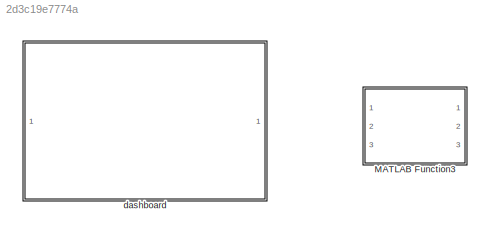
MODEL slx_2d3c19e7774a
KIND model
CONFIG AbsTol = auto
CONFIG EnableMultiTasking = off
CONFIG FixedStep = auto
CONFIG MaxStep = auto
CONFIG MinStep = auto
CONFIG RelTol = 1e-3
CONFIG SampleTimeConstraint = Unconstrained
CONFIG SolverName = VariableStepAuto
CONFIG StartTime = 0.0
CONFIG StopTime = 10.0
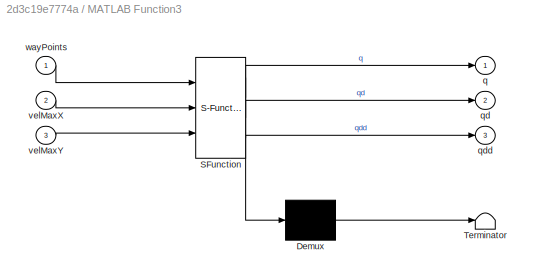
BLOCK [SubSystem] MATLAB Function3
  ErrorFcn = Stateflow.Translate.translate
  PermitHierarchicalResolution = ExplicitOnly
  Ports = [3, 3]
  RequestExecContextInheritance = off
  SFBlockType = MATLAB Function
  TreatAsAtomicUnit = on
BLOCK [Demux] MATLAB Function3/ Demux 
  Outputs = 1
  Ports = [1, 1]
BLOCK [S-Function] MATLAB Function3/ SFunction 
  EnableBusSupport = on
  FunctionName = sf_sfun
  PortCounts = [3 4]
  Ports = [3, 4]
  SFcnIsStateOwnerBlock = off
  SFunctionDeploymentMode = off
  Tag = Stateflow S-Function 5
BLOCK [Terminator] MATLAB Function3/ Terminator 
BLOCK [Outport] MATLAB Function3/q
BLOCK [Outport] MATLAB Function3/qd
  Port = 2
BLOCK [Outport] MATLAB Function3/qdd
  Port = 3
BLOCK [Inport] MATLAB Function3/velMaxX
  Port = 2
BLOCK [Inport] MATLAB Function3/velMaxY
  Port = 3
BLOCK [Inport] MATLAB Function3/wayPoints
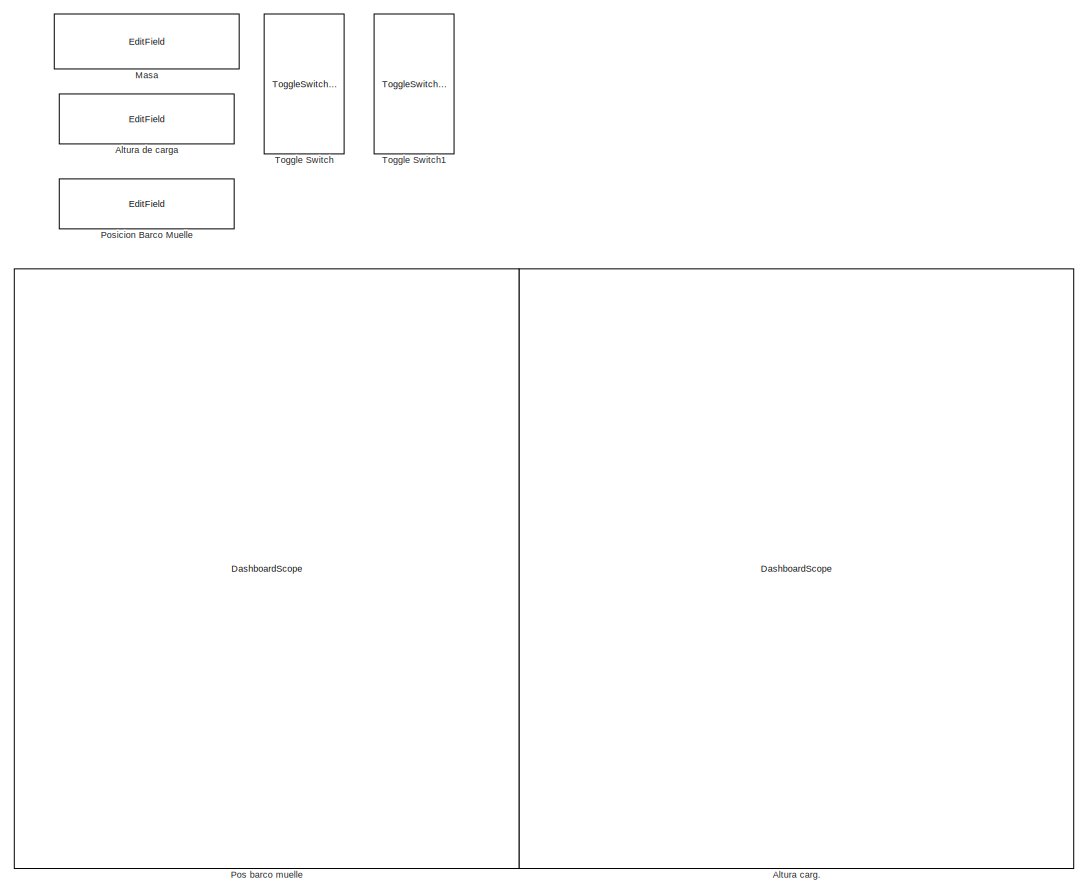
[diagram: dashboard - part 1/2, left side, full height]
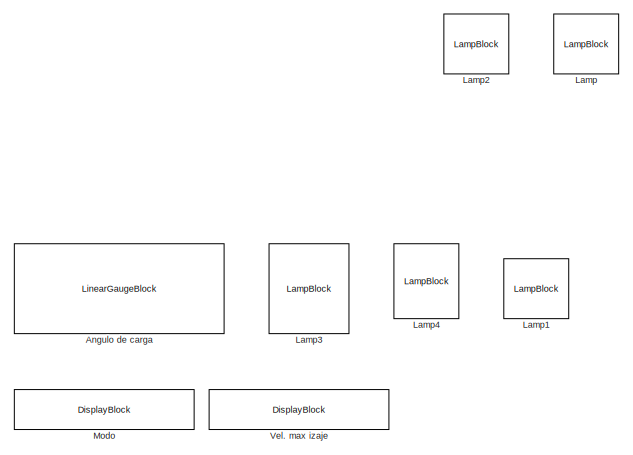
[diagram: dashboard - part 2/2, middle right region]
BLOCK [SubSystem] dashboard
  Ports = []
  RequestExecContextInheritance = off
BLOCK [DashboardScope] dashboard/Altura carg.
BLOCK [EditField] dashboard/Altura de carga
  Alignment = Center
  LabelPosition = Hide
  ShowInitialText = on
BLOCK [LinearGaugeBlock] dashboard/Angulo de carga
  LabelPosition = Hide
  ScaleMax = 0.15
  ScaleMin = -0.15
BLOCK [LampBlock] dashboard/Lamp
BLOCK [LampBlock] dashboard/Lamp1
BLOCK [LampBlock] dashboard/Lamp2
BLOCK [LampBlock] dashboard/Lamp3
  LabelPosition = Bottom
BLOCK [LampBlock] dashboard/Lamp4
BLOCK [EditField] dashboard/Masa
  Alignment = Center
  LabelPosition = Hide
  ShowInitialText = on
BLOCK [DisplayBlock] dashboard/Modo
  Format = short
  LabelPosition = Hide
  Transparency = 1
BLOCK [DashboardScope] dashboard/Pos barco muelle
BLOCK [EditField] dashboard/Posicion Barco Muelle
  Alignment = Center
  LabelPosition = Hide
  ShowInitialText = on
BLOCK [ToggleSwitchBlock] dashboard/Toggle Switch
BLOCK [ToggleSwitchBlock] dashboard/Toggle Switch1
BLOCK [DisplayBlock] dashboard/Vel. max izaje
  Format = short
  LabelPosition = Hide
  Transparency = 1
CHART MATLAB Function3 states=1 transitions=1
  STATE_LABEL 'eML_blk_kernel()'
  STATE_LABEL "SCRIPT:\nfunction [q,qd,qdd] = fcn(wayPoints,velMaxX,velMaxY)\ncoder.extrinsic('plot')\npendiente_ant=0;\n\ncont_p=1;\nwayPoints=wayPoints([2,1],:);\nwayPoints=flip(wayPoints,2);\nwayPoints(2,:)=(wayPoints(2,:)-65)*-1;\nfor i=1:length(wayPoints)-1\n    pendiente=(wayPoints(2,i)-wayPoints(2,i+1))/(wayPoints(1,i)-wayPoints(1,i+1));\n    if pendiente_ant~=pendiente\n        cont_p=cont_p+1%+2;\n    end\n    pendie...<+1573ch>"
CHART  states=0 transitions=0
